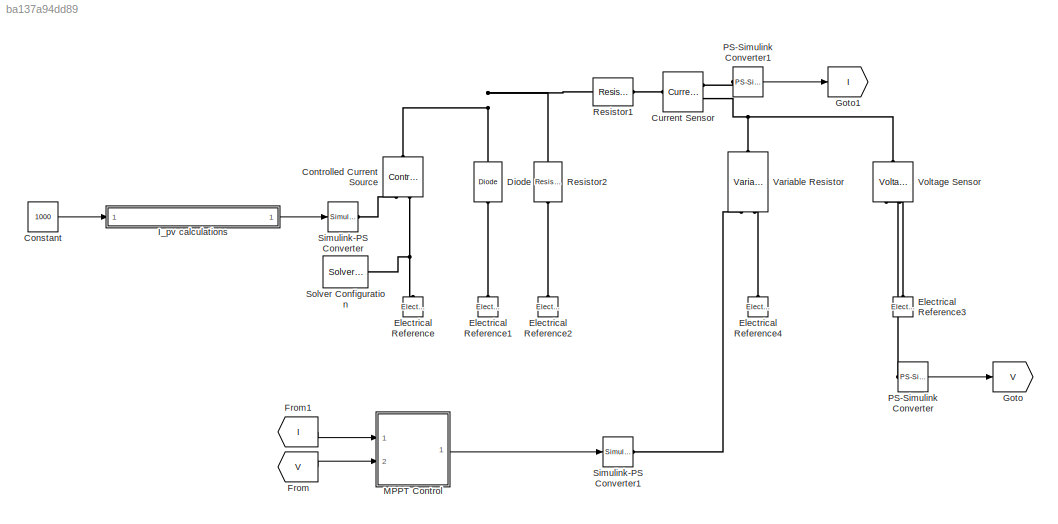
MODEL slx_ba137a94dd89
KIND model
CONFIG AbsTol = auto
CONFIG EnableMultiTasking = off
CONFIG FixedStep = 0.001
CONFIG MaxStep = auto
CONFIG MinStep = auto
CONFIG RelTol = 1e-3
CONFIG SampleTimeConstraint = Unconstrained
CONFIG Solver = VariableStepAuto
CONFIG SolverName = VariableStepAuto
CONFIG StartTime = 0.0
CONFIG StopTime = 10.0
BLOCK [Constant] Constant
  Value = 1000
BLOCK [Reference] Controlled Current Source  REF=fl_lib/Electrical/Electrical Sources/Controlled Current
Source
  Ports = [0, 0, 0, 0, 0, 1, 2]
  SourceBlock = fl_lib/Electrical/Electrical Sources/Controlled Current\nSource
  SourceProductBaseCode = SS
  SourceProductName = Simscape
  SourceType = Controlled Current\nSource
BLOCK [Reference] Current Sensor  REF=fl_lib/Electrical/Electrical Sensors/Current Sensor
  Ports = [0, 0, 0, 0, 0, 1, 2]
  SourceBlock = fl_lib/Electrical/Electrical Sensors/Current Sensor
  SourceProductBaseCode = SS
  SourceProductName = Simscape
  SourceType = Current Sensor
BLOCK [Reference] Diode  REF=elec_lib/Semiconductor
Devices/Diode
  Ports = [0, 0, 0, 0, 0, 1, 1]
  SourceBlock = elec_lib/Semiconductor\nDevices/Diode
  SourceProductBaseCode = SN
  SourceProductName = Simscape Electronics
  SourceType = Diode
BLOCK [Reference] Electrical Reference  REF=fl_lib/Electrical/Electrical Elements/Electrical Reference
  Ports = [0, 0, 0, 0, 0, 1]
  SourceBlock = fl_lib/Electrical/Electrical Elements/Electrical Reference
  SourceProductBaseCode = SS
  SourceProductName = Simscape
  SourceType = Electrical Reference
BLOCK [Reference] Electrical Reference1  REF=fl_lib/Electrical/Electrical Elements/Electrical Reference
  Ports = [0, 0, 0, 0, 0, 1]
  SourceBlock = fl_lib/Electrical/Electrical Elements/Electrical Reference
  SourceProductBaseCode = SS
  SourceProductName = Simscape
  SourceType = Electrical Reference
BLOCK [Reference] Electrical Reference2  REF=fl_lib/Electrical/Electrical Elements/Electrical Reference
  Ports = [0, 0, 0, 0, 0, 1]
  SourceBlock = fl_lib/Electrical/Electrical Elements/Electrical Reference
  SourceProductBaseCode = SS
  SourceProductName = Simscape
  SourceType = Electrical Reference
BLOCK [Reference] Electrical Reference3  REF=fl_lib/Electrical/Electrical Elements/Electrical Reference
  Ports = [0, 0, 0, 0, 0, 1]
  SourceBlock = fl_lib/Electrical/Electrical Elements/Electrical Reference
  SourceProductBaseCode = SS
  SourceProductName = Simscape
  SourceType = Electrical Reference
BLOCK [Reference] Electrical Reference4  REF=fl_lib/Electrical/Electrical Elements/Electrical Reference
  Ports = [0, 0, 0, 0, 0, 1]
  SourceBlock = fl_lib/Electrical/Electrical Elements/Electrical Reference
  SourceProductBaseCode = SS
  SourceProductName = Simscape
  SourceType = Electrical Reference
BLOCK [From] From
  GotoTag = V
BLOCK [From] From1
  GotoTag = I
BLOCK [Goto] Goto
  GotoTag = V
BLOCK [Goto] Goto1
  GotoTag = I
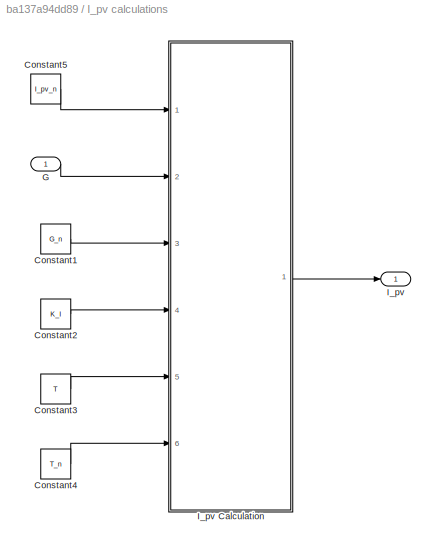
BLOCK [SubSystem] I_pv calculations
  Ports = [1, 1]
  RequestExecContextInheritance = off
  Variant = off
BLOCK [Constant] I_pv calculations/Constant1
  Value = G_n
BLOCK [Constant] I_pv calculations/Constant2
  Value = K_I
BLOCK [Constant] I_pv calculations/Constant3
  Value = T
BLOCK [Constant] I_pv calculations/Constant4
  Value = T_n
BLOCK [Constant] I_pv calculations/Constant5
  Value = I_pv_n
BLOCK [Inport] I_pv calculations/G
  IconDisplay = Port number
BLOCK [Outport] I_pv calculations/I_pv
  IconDisplay = Port number
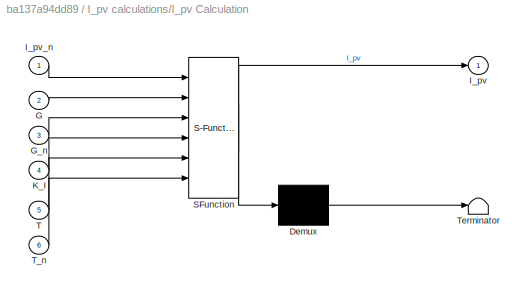
BLOCK [SubSystem] I_pv calculations/I_pv Calculation
  ErrorFcn = Stateflow.Translate.translate
  PermitHierarchicalResolution = ExplicitOnly
  Ports = [6, 1]
  RequestExecContextInheritance = off
  SFBlockType = MATLAB Function
  TreatAsAtomicUnit = on
  Variant = off
BLOCK [Demux] I_pv calculations/I_pv Calculation/ Demux 
  Outputs = 1
  Ports = [1, 1]
BLOCK [S-Function] I_pv calculations/I_pv Calculation/ SFunction 
  EnableBusSupport = on
  FunctionName = sf_sfun
  PortCounts = [6 2]
  Ports = [6, 2]
  SFcnIsStateOwnerBlock = off
  SFunctionDeploymentMode = off
  Tag = Stateflow S-Function GSK_PVModel_05 1
BLOCK [Terminator] I_pv calculations/I_pv Calculation/ Terminator 
BLOCK [Inport] I_pv calculations/I_pv Calculation/G
  IconDisplay = Port number
  Port = 2
BLOCK [Inport] I_pv calculations/I_pv Calculation/G_n
  IconDisplay = Port number
  Port = 3
BLOCK [Outport] I_pv calculations/I_pv Calculation/I_pv
  IconDisplay = Port number
BLOCK [Inport] I_pv calculations/I_pv Calculation/I_pv_n
  IconDisplay = Port number
BLOCK [Inport] I_pv calculations/I_pv Calculation/K_I
  IconDisplay = Port number
  Port = 4
BLOCK [Inport] I_pv calculations/I_pv Calculation/T
  IconDisplay = Port number
  Port = 5
BLOCK [Inport] I_pv calculations/I_pv Calculation/T_n
  IconDisplay = Port number
  Port = 6
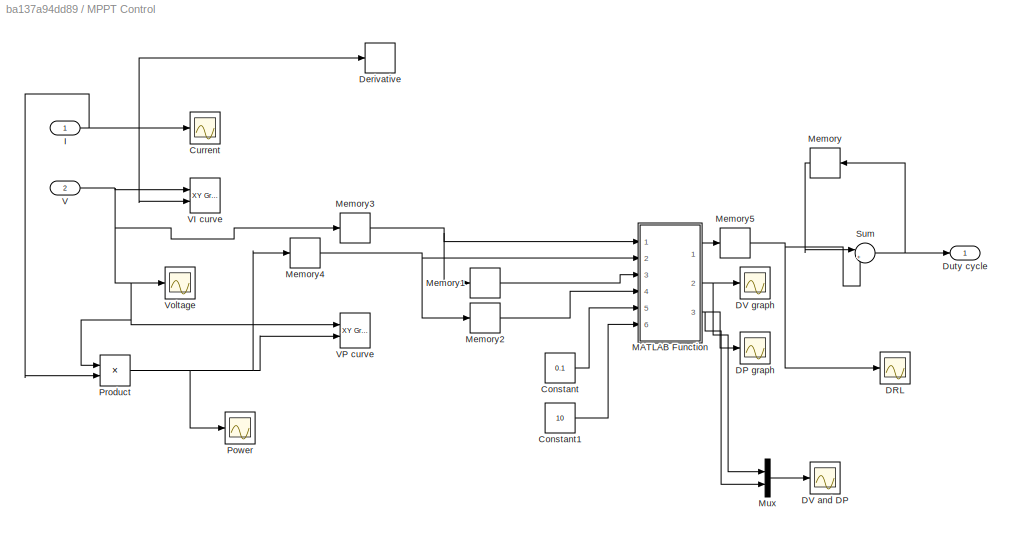
BLOCK [SubSystem] MPPT Control
  Ports = [2, 1]
  RequestExecContextInheritance = off
  Variant = off
BLOCK [Constant] MPPT Control/Constant
  Value = 0.1
BLOCK [Constant] MPPT Control/Constant1
  Value = 10
BLOCK [Scope] MPPT Control/Current
  NumInputPorts = 1
  Ports = [1]
  ScopeSpecificationString = Simulink.scopes.TimeScopeBlockCfg('CurrentConfiguration', extmgr.ConfigurationSet(extmgr.Configuration('Core','General UI',true),extmgr.Configuration('Core','Source UI',true),extmgr.Configuration('Sources','WiredSimulink',true,'DataLoggingVariableName','ScopeData1'),extmgr.Configuration('Visuals','Time Domain',true,'SerializedDisplays',{struct('MinYLimReal','2.45414','MaxYLimReal','6.99236','YLabe...<+1429ch>
BLOCK [Scope] MPPT Control/DP graph
  NumInputPorts = 1
  Ports = [1]
  ScopeSpecificationString = Simulink.scopes.TimeScopeBlockCfg('CurrentConfiguration', extmgr.ConfigurationSet(extmgr.Configuration('Core','General UI',true),extmgr.Configuration('Core','Source UI',true),extmgr.Configuration('Sources','WiredSimulink',true,'DataLoggingVariableName','ScopeData4'),extmgr.Configuration('Visuals','Time Domain',true,'SerializedDisplays',{struct('MinYLimReal','-5.7548','MaxYLimReal','2.9317','YLabel...<+1442ch>
BLOCK [Scope] MPPT Control/DRL
  NumInputPorts = 1
  Ports = [1]
  ScopeSpecificationString = Simulink.scopes.TimeScopeBlockCfg('CurrentConfiguration', extmgr.ConfigurationSet(extmgr.Configuration('Core','General UI',true),extmgr.Configuration('Core','Source UI',true),extmgr.Configuration('Sources','WiredSimulink',true,'DataLoggingVariableName','ScopeData2'),extmgr.Configuration('Visuals','Time Domain',true,'SerializedDisplays',{struct('MinYLimReal','-0.00536','MaxYLimReal','0.00521','YLab...<+1437ch>
BLOCK [Scope] MPPT Control/DV and DP
  NumInputPorts = 1
  Ports = [1]
  ScopeSpecificationString = Simulink.scopes.TimeScopeBlockCfg('CurrentConfiguration', extmgr.ConfigurationSet(extmgr.Configuration('Core','General UI',true),extmgr.Configuration('Core','Source UI',true),extmgr.Configuration('Sources','WiredSimulink',true,'DataLoggingVariableName','ScopeData5'),extmgr.Configuration('Visuals','Time Domain',true,'SerializedDisplays',{struct('MinYLimReal','-12.05909','MaxYLimReal','96.81959','YL...<+1475ch>
BLOCK [Scope] MPPT Control/DV graph
  NumInputPorts = 1
  Ports = [1]
  ScopeSpecificationString = Simulink.scopes.TimeScopeBlockCfg('CurrentConfiguration', extmgr.ConfigurationSet(extmgr.Configuration('Core','General UI',true),extmgr.Configuration('Core','Source UI',true),extmgr.Configuration('Sources','WiredSimulink',true,'DataLoggingVariableName','ScopeData3'),extmgr.Configuration('Visuals','Time Domain',true,'SerializedDisplays',{struct('MinYLimReal','-0.0441','MaxYLimReal','0.03988','YLabe...<+1444ch>
BLOCK [Derivative] MPPT Control/Derivative
BLOCK [Outport] MPPT Control/Duty cycle
  IconDisplay = Port number
BLOCK [Inport] MPPT Control/I
  IconDisplay = Port number
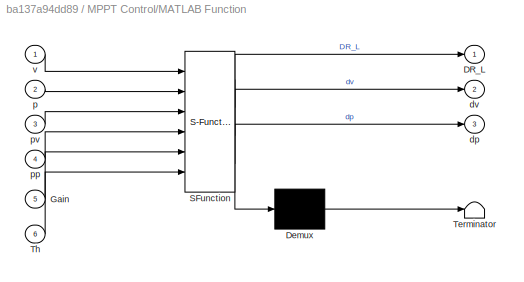
BLOCK [SubSystem] MPPT Control/MATLAB Function
  ErrorFcn = Stateflow.Translate.translate
  PermitHierarchicalResolution = ExplicitOnly
  Ports = [6, 3]
  RequestExecContextInheritance = off
  SFBlockType = MATLAB Function
  TreatAsAtomicUnit = on
  Variant = off
BLOCK [Demux] MPPT Control/MATLAB Function/ Demux 
  Outputs = 1
  Ports = [1, 1]
BLOCK [S-Function] MPPT Control/MATLAB Function/ SFunction 
  EnableBusSupport = on
  FunctionName = sf_sfun
  PortCounts = [6 4]
  Ports = [6, 4]
  SFcnIsStateOwnerBlock = off
  SFunctionDeploymentMode = off
  Tag = Stateflow S-Function GSK_PVModel_05 2
BLOCK [Terminator] MPPT Control/MATLAB Function/ Terminator 
BLOCK [Outport] MPPT Control/MATLAB Function/DR_L
  IconDisplay = Port number
BLOCK [Inport] MPPT Control/MATLAB Function/Gain
  IconDisplay = Port number
  Port = 5
BLOCK [Inport] MPPT Control/MATLAB Function/Th
  IconDisplay = Port number
  Port = 6
BLOCK [Outport] MPPT Control/MATLAB Function/dp
  IconDisplay = Port number
  Port = 3
BLOCK [Outport] MPPT Control/MATLAB Function/dv
  IconDisplay = Port number
  Port = 2
BLOCK [Inport] MPPT Control/MATLAB Function/p
  IconDisplay = Port number
  Port = 2
BLOCK [Inport] MPPT Control/MATLAB Function/pp
  IconDisplay = Port number
  Port = 4
BLOCK [Inport] MPPT Control/MATLAB Function/pv
  IconDisplay = Port number
  Port = 3
BLOCK [Inport] MPPT Control/MATLAB Function/v
  IconDisplay = Port number
BLOCK [Memory] MPPT Control/Memory
  X0 = 2
BLOCK [Memory] MPPT Control/Memory1
BLOCK [Memory] MPPT Control/Memory2
BLOCK [Memory] MPPT Control/Memory3
BLOCK [Memory] MPPT Control/Memory4
BLOCK [Memory] MPPT Control/Memory5
BLOCK [Mux] MPPT Control/Mux
  DisplayOption = bar
  Inputs = 2
  Ports = [2, 1]
BLOCK [Scope] MPPT Control/Power
  NumInputPorts = 1
  Ports = [1]
  ScopeSpecificationString = Simulink.scopes.TimeScopeBlockCfg('CurrentConfiguration', extmgr.ConfigurationSet(extmgr.Configuration('Core','General UI',true),extmgr.Configuration('Core','Source UI',true),extmgr.Configuration('Sources','WiredSimulink',true,'DataLoggingVariableName','ScopeData1'),extmgr.Configuration('Visuals','Time Domain',true,'SerializedDisplays',{struct('MinYLimReal','41.09901','MaxYLimReal','449.48007','YL...<+1422ch>
BLOCK [Product] MPPT Control/Product
  InputSameDT = off
  OutDataTypeStr = Inherit: Inherit via internal rule
  Ports = [2, 1]
  RndMeth = Floor
  SaturateOnIntegerOverflow = off
BLOCK [Sum] MPPT Control/Sum
  IconShape = round
  InputSameDT = off
  Inputs = |++
  OutDataTypeStr = Inherit: Inherit via internal rule
  Ports = [2, 1]
  SaturateOnIntegerOverflow = off
BLOCK [Inport] MPPT Control/V
  IconDisplay = Port number
  Port = 2
BLOCK [Reference] MPPT Control/VI curve  REF=simulink/Sinks/XY Graph
  Ports = [2]
  SourceBlock = simulink/Sinks/XY Graph
  SourceProductBaseCode = SL
  SourceProductName = Simulink
  SourceType = XY scope.
BLOCK [Reference] MPPT Control/VP curve  REF=simulink/Sinks/XY Graph
  Ports = [2]
  SourceBlock = simulink/Sinks/XY Graph
  SourceProductBaseCode = SL
  SourceProductName = Simulink
  SourceType = XY scope.
BLOCK [Scope] MPPT Control/Voltage
  NumInputPorts = 1
  Ports = [1]
  ScopeSpecificationString = Simulink.scopes.TimeScopeBlockCfg('CurrentConfiguration', extmgr.ConfigurationSet(extmgr.Configuration('Core','General UI',true),extmgr.Configuration('Core','Source UI',true),extmgr.Configuration('Sources','WiredSimulink',true),extmgr.Configuration('Visuals','Time Domain',true,'SerializedDisplays',{struct('MinYLimReal','4.98855','MaxYLimReal','86.20083','YLabelReal','','MinYLimMag','4.98855','MaxY...<+1394ch>
BLOCK [Reference] PS-Simulink Converter  REF=nesl_utility/PS-Simulink
Converter
  Ports = [0, 1, 0, 0, 0, 1]
  SourceBlock = nesl_utility/PS-Simulink\nConverter
  SourceProductBaseCode = SS
  SourceProductName = Simscape
  SourceType = PS-Simulink\nConverter
BLOCK [Reference] PS-Simulink Converter1  REF=nesl_utility/PS-Simulink
Converter
  Ports = [0, 1, 0, 0, 0, 1]
  SourceBlock = nesl_utility/PS-Simulink\nConverter
  SourceProductBaseCode = SS
  SourceProductName = Simscape
  SourceType = PS-Simulink\nConverter
BLOCK [Reference] Resistor1  REF=fl_lib/Electrical/Electrical Elements/Resistor
  Ports = [0, 0, 0, 0, 0, 1, 1]
  SourceBlock = fl_lib/Electrical/Electrical Elements/Resistor
  SourceProductBaseCode = SS
  SourceProductName = Simscape
  SourceType = Resistor
BLOCK [Reference] Resistor2  REF=fl_lib/Electrical/Electrical Elements/Resistor
  Ports = [0, 0, 0, 0, 0, 1, 1]
  SourceBlock = fl_lib/Electrical/Electrical Elements/Resistor
  SourceProductBaseCode = SS
  SourceProductName = Simscape
  SourceType = Resistor
BLOCK [Reference] Simulink-PS Converter  REF=nesl_utility/Simulink-PS
Converter
  Ports = [1, 0, 0, 0, 0, 0, 1]
  SourceBlock = nesl_utility/Simulink-PS\nConverter
  SourceProductBaseCode = SS
  SourceProductName = Simscape
  SourceType = Simulink-PS\nConverter
BLOCK [Reference] Simulink-PS Converter1  REF=nesl_utility/Simulink-PS
Converter
  Ports = [1, 0, 0, 0, 0, 0, 1]
  SourceBlock = nesl_utility/Simulink-PS\nConverter
  SourceProductBaseCode = SS
  SourceProductName = Simscape
  SourceType = Simulink-PS\nConverter
BLOCK [Reference] Solver Configuration  REF=nesl_utility/Solver
Configuration
  Ports = [0, 0, 0, 0, 0, 0, 1]
  SourceBlock = nesl_utility/Solver\nConfiguration
  SourceProductBaseCode = SS
  SourceProductName = Simscape
  SourceType = Solver\nConfiguration
BLOCK [Reference] Variable Resistor  REF=fl_lib/Electrical/Electrical Elements/Variable Resistor
  Ports = [0, 0, 0, 0, 0, 2, 1]
  SourceBlock = fl_lib/Electrical/Electrical Elements/Variable Resistor
  SourceProductBaseCode = SS
  SourceProductName = Simscape
  SourceType = Variable Resistor
BLOCK [Reference] Voltage Sensor  REF=fl_lib/Electrical/Electrical Sensors/Voltage Sensor
  Ports = [0, 0, 0, 0, 0, 1, 2]
  SourceBlock = fl_lib/Electrical/Electrical Sensors/Voltage Sensor
  SourceProductBaseCode = SS
  SourceProductName = Simscape
  SourceType = Voltage Sensor
LINE Constant:1 -> I_pv calculations:1
LINE From1:1 -> MPPT Control:1
LINE From:1 -> MPPT Control:2
LINE I_pv calculations/Constant1:1 -> I_pv calculations/I_pv Calculation:3
LINE I_pv calculations/Constant2:1 -> I_pv calculations/I_pv Calculation:4
LINE I_pv calculations/Constant3:1 -> I_pv calculations/I_pv Calculation:5
LINE I_pv calculations/Constant4:1 -> I_pv calculations/I_pv Calculation:6
LINE I_pv calculations/Constant5:1 -> I_pv calculations/I_pv Calculation:1
LINE I_pv calculations/G:1 -> I_pv calculations/I_pv Calculation:2
LINE I_pv calculations/I_pv Calculation:1 -> I_pv calculations/I_pv:1
LINE I_pv calculations:1 -> Simulink-PS Converter:1
LINE MPPT Control/Constant1:1 -> MPPT Control/MATLAB Function:6
LINE MPPT Control/Constant:1 -> MPPT Control/MATLAB Function:5
NET MPPT Control/I:1 -> MPPT Control/Current:1, MPPT Control/Derivative:1, MPPT Control/Product:2, MPPT Control/VI curve:2
LINE MPPT Control/MATLAB Function:1 -> MPPT Control/Memory5:1
NET MPPT Control/MATLAB Function:2 -> MPPT Control/DV graph:1, MPPT Control/Mux:1
NET MPPT Control/MATLAB Function:3 -> MPPT Control/DP graph:1, MPPT Control/Mux:2
LINE MPPT Control/Memory1:1 -> MPPT Control/MATLAB Function:3
LINE MPPT Control/Memory2:1 -> MPPT Control/MATLAB Function:4
NET MPPT Control/Memory3:1 -> MPPT Control/MATLAB Function:1, MPPT Control/Memory1:1
NET MPPT Control/Memory4:1 -> MPPT Control/MATLAB Function:2, MPPT Control/Memory2:1
NET MPPT Control/Memory5:1 -> MPPT Control/DRL:1, MPPT Control/Sum:2
LINE MPPT Control/Memory:1 -> MPPT Control/Sum:1
LINE MPPT Control/Mux:1 -> MPPT Control/DV and DP:1
NET MPPT Control/Product:1 -> MPPT Control/Memory4:1, MPPT Control/Power:1, MPPT Control/VP curve:2
NET MPPT Control/Sum:1 -> MPPT Control/Duty cycle:1, MPPT Control/Memory:1
NET MPPT Control/V:1 -> MPPT Control/Memory3:1, MPPT Control/Product:1, MPPT Control/VI curve:1, MPPT Control/VP curve:1, MPPT Control/Voltage:1
LINE MPPT Control:1 -> Simulink-PS Converter1:1
LINE PS-Simulink Converter1:1 -> Goto1:1
LINE PS-Simulink Converter:1 -> Goto:1
PNET net1: Controlled Current Source:LConn1 -- Diode:LConn1 -- Resistor1:LConn1 -- Resistor2:LConn1
PLINE Controlled Current Source:RConn1 -- Simulink-PS Converter:RConn1
PNET net2: Controlled Current Source:RConn2 -- Electrical Reference:LConn1 -- Solver Configuration:RConn1
PLINE Current Sensor:LConn1 -- Resistor1:RConn1
PLINE Current Sensor:RConn1 -- PS-Simulink Converter1:LConn1
PNET net3: Current Sensor:RConn2 -- Variable Resistor:RConn1 -- Voltage Sensor:LConn1
PLINE Diode:RConn1 -- Electrical Reference1:LConn1
PLINE Electrical Reference2:LConn1 -- Resistor2:RConn1
PLINE Electrical Reference3:LConn1 -- Voltage Sensor:RConn2
PLINE Electrical Reference4:LConn1 -- Variable Resistor:LConn2
PLINE PS-Simulink Converter:LConn1 -- Voltage Sensor:RConn1
PLINE Simulink-PS Converter1:RConn1 -- Variable Resistor:LConn1
note: NET lines group one-source signal fan-out (src -> all destinations, sorted); 1:1 wires keep LINE; PNET lines group multi-terminal physical nets as a canonical sorted terminal list (undirected conserving connections); 2-terminal nets keep the pairwise PLINE form
CHART I_pv calculations/I_pv Calculation states=1 transitions=1
  STATE_LABEL 'eML_blk_kernel()'
  STATE_LABEL 'SCRIPT:\nfunction I_pv = fcn(I_pv_n, G, G_n, K_I, T, T_n )\n%#codegen\nDelta_T = (T - T_n);\nI_pv = (I_pv_n + K_I*Delta_T)*G/G_n;'
CHART MPPT Control/MATLAB Function states=1 transitions=1
  STATE_LABEL 'eML_blk_kernel()'
  STATE_LABEL 'SCRIPT:\nfunction [DR_L, dv, dp] = fcn(v, p, pv, pp, Gain, Th)\ndv = v - pv;\ndp = p - pp;\nDR_L = 0;\nif (dv == 0)\n    DR_L = Gain;\n    return\nend\nif ((dv > 0 && dp > 0) || (dv < 0 && dp < 0) )\n    if (dp/dv>=Th)\n        DR_L = +Gain;\n    else\n        DR_L = +0;\n    end\n    return\n elseif ((dv < 0 && dp > 0) || (dv > 0 && dp < 0) )\n     DR_L = -Gain;\n     return\nend'
